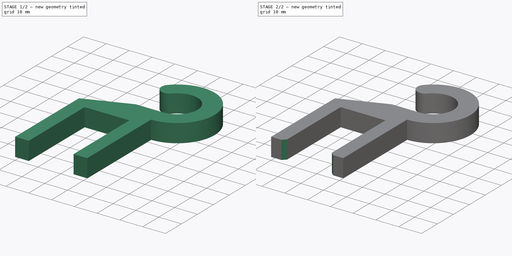
[diagram: build sequence overview — one tinted view per stage of 2, left to right]
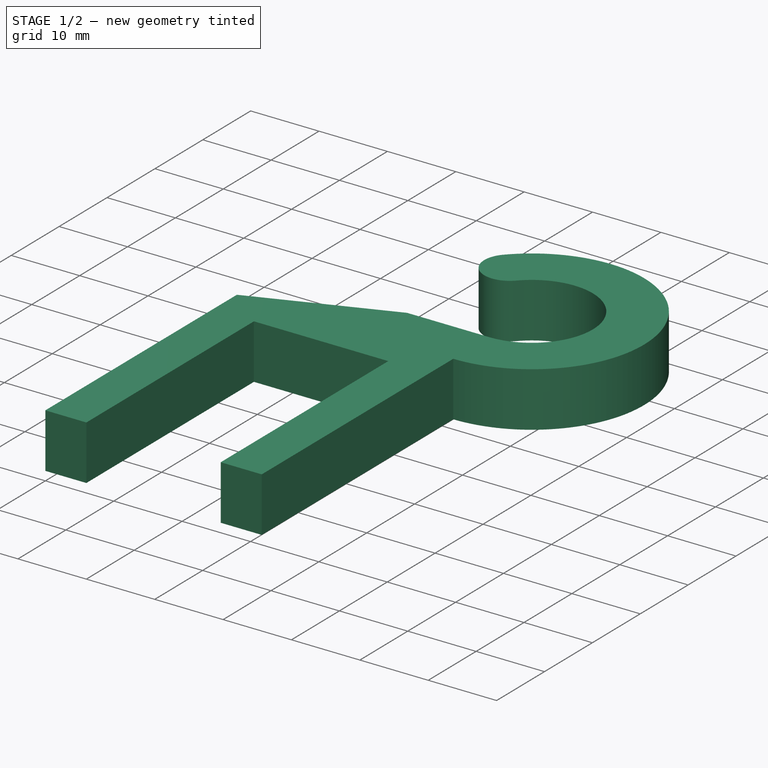
[diagram: stage 1 of 2 — iso view after this stage's code; geometry added in this stage tinted green]
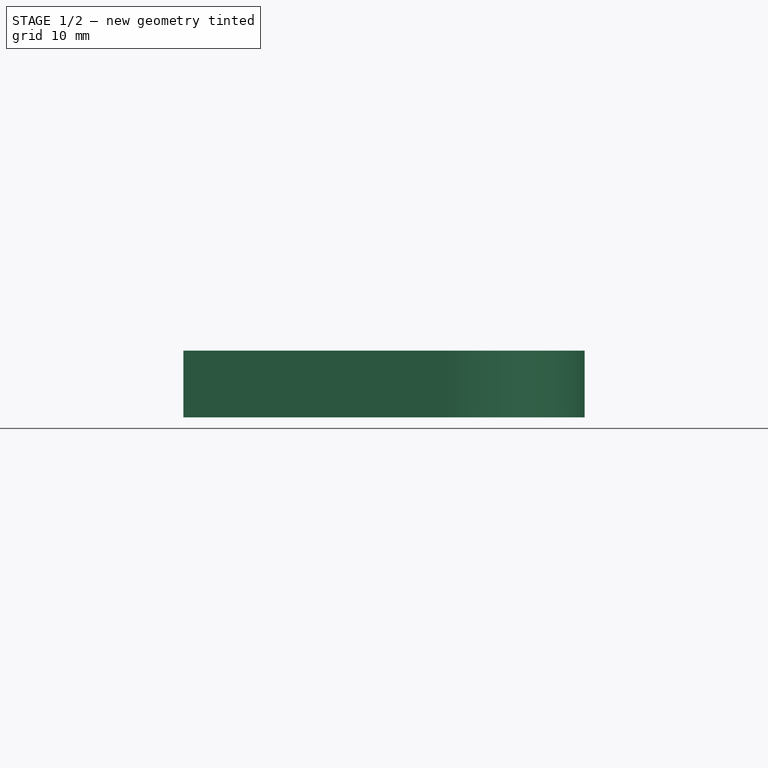
[diagram: stage 1 of 2 — front view after this stage's code; geometry added in this stage tinted green]
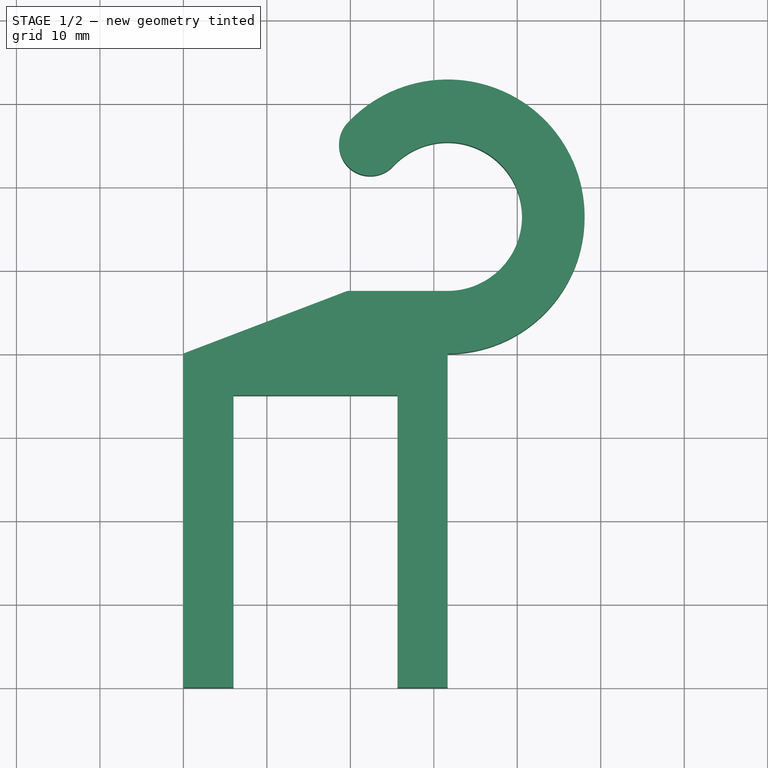
[diagram: stage 1 of 2 — top view after this stage's code; geometry added in this stage tinted green]
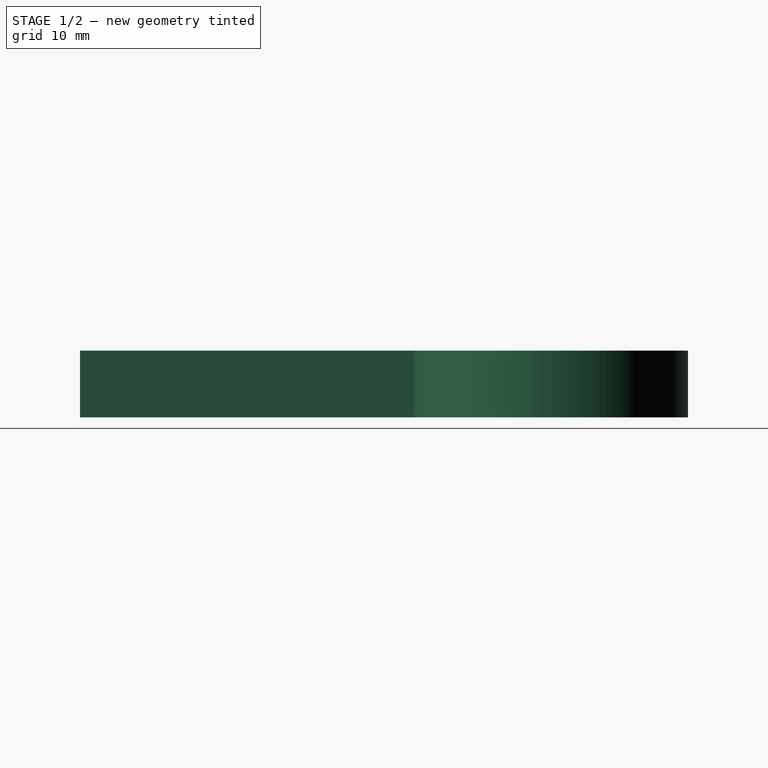
[diagram: stage 1 of 2 — right view after this stage's code; geometry added in this stage tinted green]
FCSTD DOCUMENT  (FreeCAD 0.19R22262 (Git))
Label: kleiderhaken_regal
License: All rights reserved
LicenseURL: http://en.wikipedia.org/wiki/All_rights_reserved
objects: Sketcher::SketchObject×1, PartDesign::Pad×1, PartDesign::Chamfer×1, PartDesign::Body×1
note: 6 computed .brp shape members not serialized (recipe doc carries the construction recipe); baked Part::Feature solids carry a one-line shape summary decoded from their .brp

FEATURE [Sketcher::SketchObject] Sketch
  MapMode = 5
  Support = -> [XY_Plane]
  sketch-geometry (14):
    g0: ArcOfCircle CenterX=31.65 CenterY=16.4159 CenterZ=0 NormalX=0 NormalY=0 NormalZ=1 AngleXU=0 Radius=16.4159 StartAngle=4.71239 EndAngle=8.67376
    g1: ArcOfCircle CenterX=22.3912 CenterY=25.0589 CenterZ=0 NormalX=0 NormalY=0 NormalZ=1 AngleXU=0 Radius=3.75 StartAngle=2.39058 EndAngle=5.53217
    g2: ArcOfCircle CenterX=31.65 CenterY=16.4159 CenterZ=0 NormalX=0 NormalY=0 NormalZ=1 AngleXU=0 Radius=8.91594 StartAngle=4.71239 EndAngle=8.67376
    g3: LineSegment StartX=31.65 StartY=7.5 StartZ=0 EndX=19.65 EndY=7.5 EndZ=0
    g4: LineSegment StartX=19.65 StartY=7.5 StartZ=0 EndX=0 EndY=0 EndZ=0
    g5: LineSegment StartX=0 StartY=0 StartZ=0 EndX=0 EndY=-40 EndZ=0
    g6: LineSegment StartX=0 StartY=-40 StartZ=0 EndX=6 EndY=-40 EndZ=0
    g7: LineSegment StartX=6 StartY=-40 StartZ=0 EndX=6 EndY=-5 EndZ=0
    g8: LineSegment StartX=6 StartY=-5 StartZ=0 EndX=25.65 EndY=-5 EndZ=0
    g9: LineSegment StartX=25.65 StartY=-5 StartZ=0 EndX=25.65 EndY=-40 EndZ=0
    g10: LineSegment StartX=25.65 StartY=-40 StartZ=0 EndX=31.65 EndY=-40 EndZ=0
    g11: LineSegment StartX=31.65 StartY=-40 StartZ=0 EndX=31.65 EndY=0 EndZ=0
    g12: LineSegment [constr] StartX=31.65 StartY=7.5 StartZ=0 EndX=31.65 EndY=0 EndZ=0
    g13: LineSegment [constr] StartX=25.1325 StartY=22.5 StartZ=0 EndX=19.65 EndY=27.6179 EndZ=0
  constraints (39):
    c: Tangent(g0,g1) = -1.5708
    c: Tangent(g1,g2) = 1.5708
    c: Coincident(g2,g3)
    c: Horizontal(g3)
    c: Coincident(g3,g4)
    c: Coincident(g0,g2)
    c: Coincident(g4,g-1)
    c: DistanceY(g4,g3) = 7.5
    c: DistanceY(g2,g1) = 15
    c: DistanceX(g0,g0) = 12
    c: Vertical(g3,g0)
    c: Coincident(g4,g5)
    c: PointOnObject(g5,g-2)
    c: Coincident(g5,g6)
    c: Horizontal(g6)
    c: Coincident(g6,g7)
    c: Vertical(g7)
    c: Coincident(g7,g8)
    c: Horizontal(g8)
    c: Coincident(g8,g9)
    c: Vertical(g9)
    c: Coincident(g9,g10)
    c: Horizontal(g10)
    c: Coincident(g10,g11)
    c: Vertical(g11)
    c: DistanceX(g8,g8) = 19.65
    c: DistanceX(g10,g10) = 6
    c: Equal(g10,g6)
    c: DistanceY(g7,g4) = 5
    c: Equal(g7,g9)
    c: DistanceY(g7,g7) = 35
    c: Horizontal(g11,g4)
    c: Coincident(g0,g11)
    c: Vertical(g0,g2)
    c: Coincident(g12,g2)
    c: Coincident(g12,g0)
    c: Coincident(g13,g1)
    c: Coincident(g13,g0)
    c: Equal(g13,g12)
FEATURE [PartDesign::Pad] Pad
  AllowMultiFace = false
  Length = 8
  Length2 = 100
  Profile = -> Sketch
  Refine = true
  Type = 0
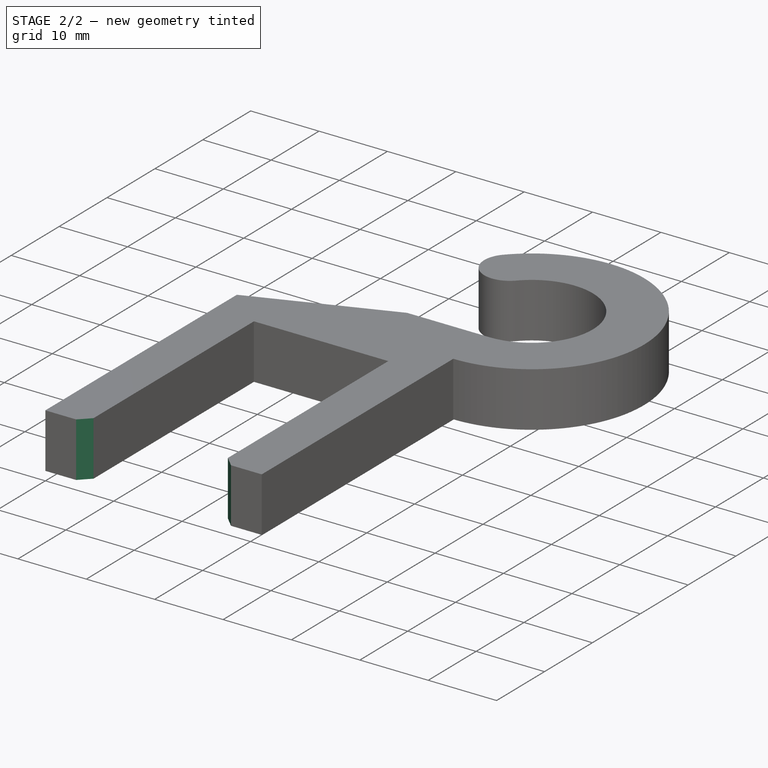
[diagram: stage 2 of 2 — iso view after this stage's code; geometry added in this stage tinted green]
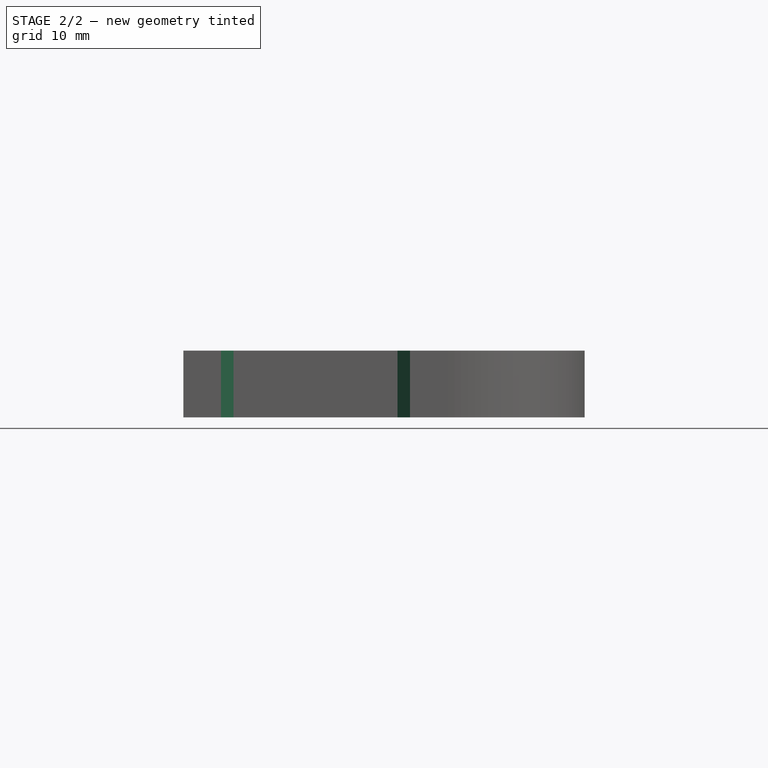
[diagram: stage 2 of 2 — front view after this stage's code; geometry added in this stage tinted green]
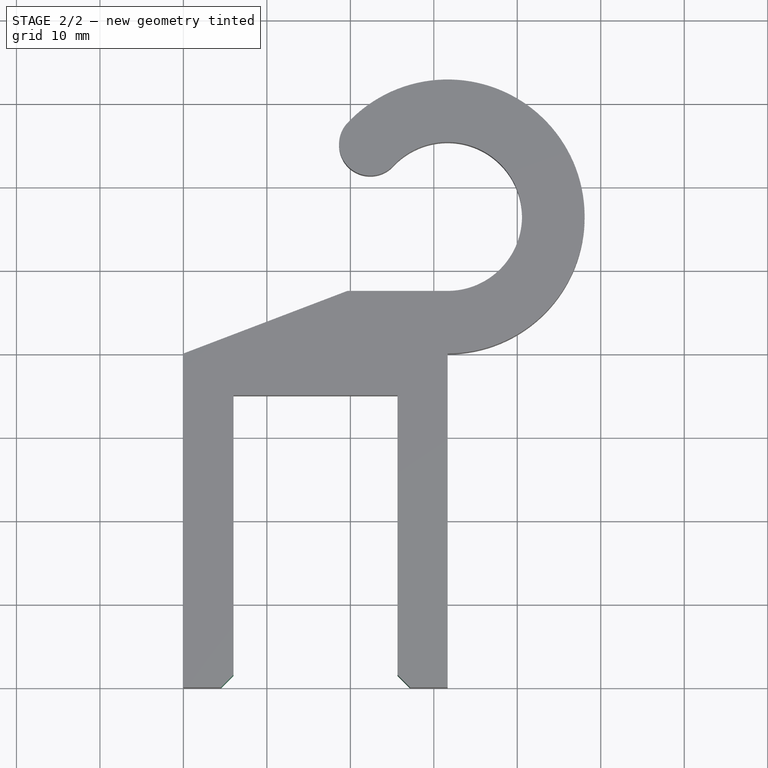
[diagram: stage 2 of 2 — top view after this stage's code; geometry added in this stage tinted green]
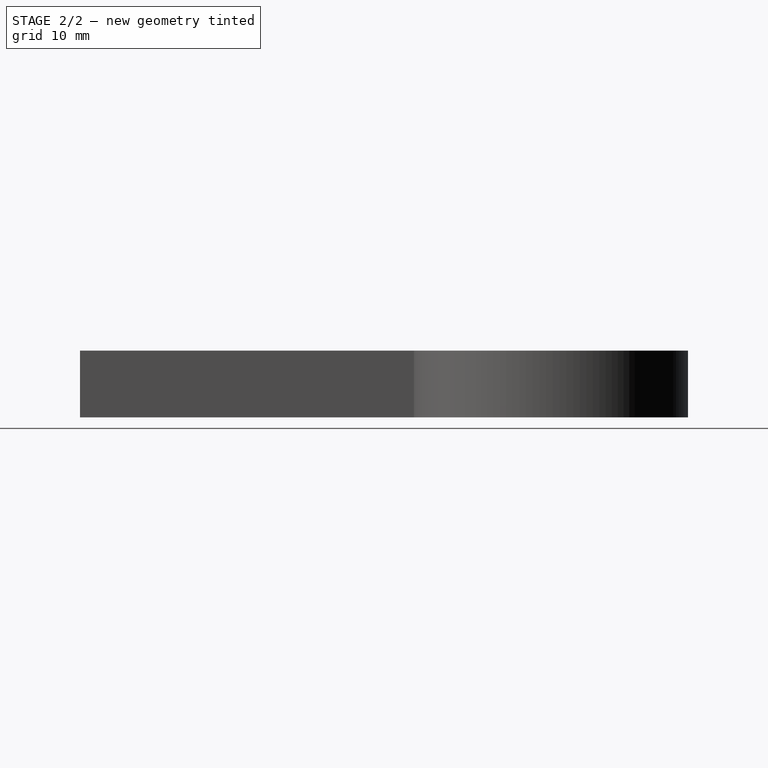
[diagram: stage 2 of 2 — right view after this stage's code; geometry added in this stage tinted green]
FEATURE [PartDesign::Chamfer] Chamfer
  Angle = 45
  Base = -> Pad [Edge20,Edge29]
  BaseFeature = -> Pad
  ChamferType = 0
  FlipDirection = false
  Refine = true
  Size = 1.5
  Size2 = 1
  SupportTransform = false
FEATURE [PartDesign::Body] Body
  Group = -> [Sketch,Pad,Chamfer]
  Origin = -> Origin
  Tip = -> Chamfer
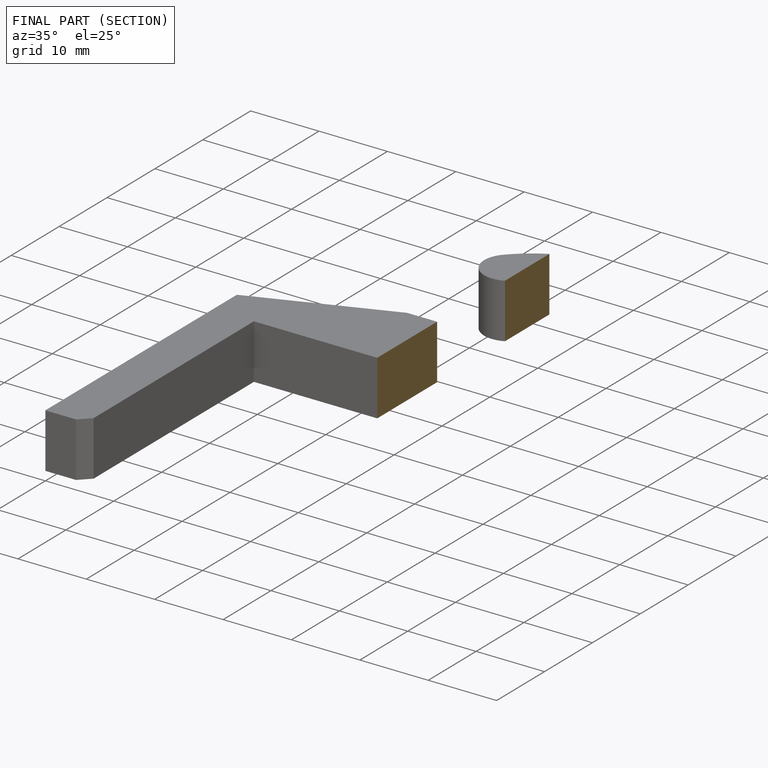
[diagram: finished part — half-section view (interior)]
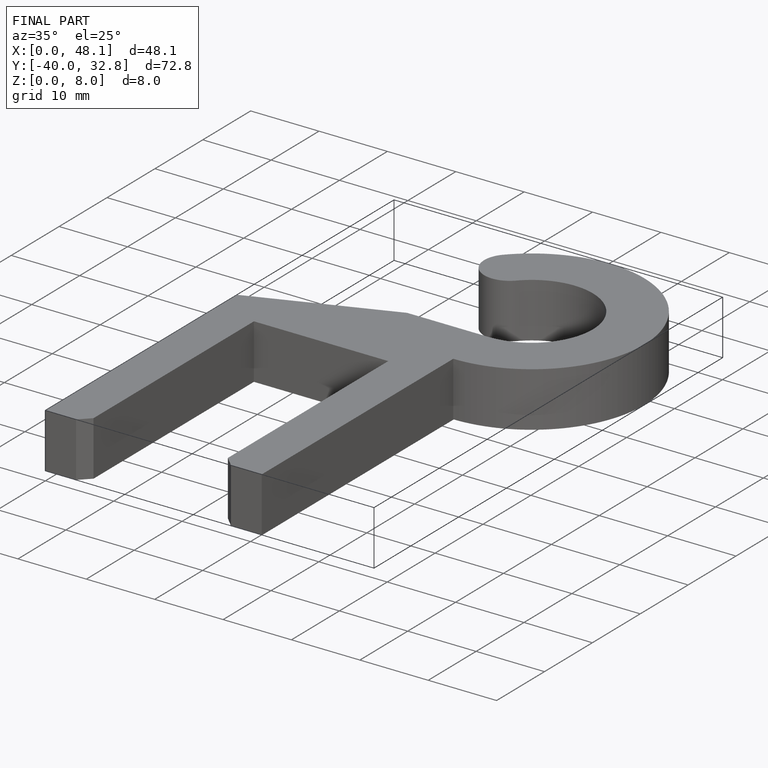
[diagram: finished part — iso view with bounding-box wireframe]
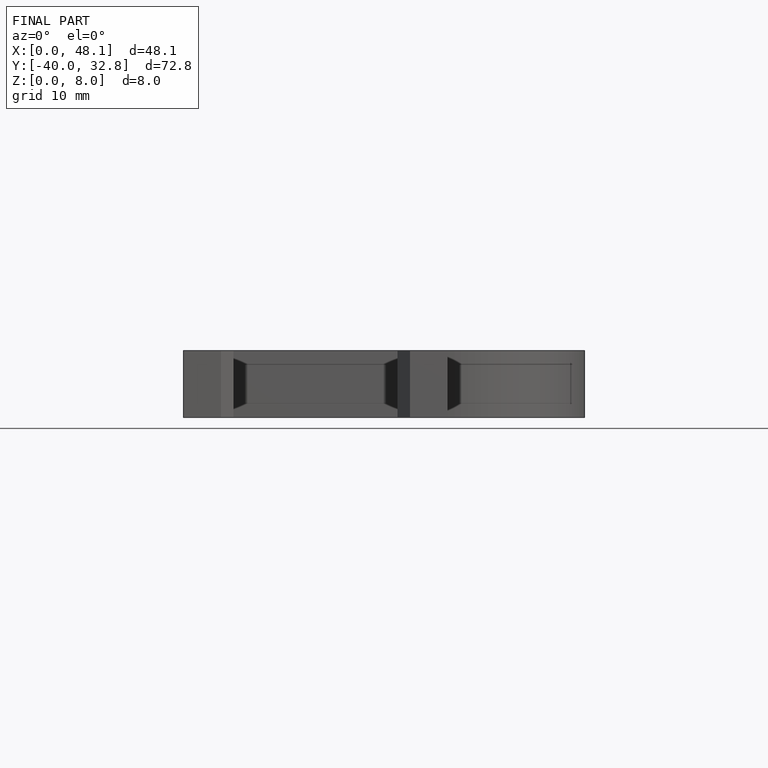
[diagram: finished part — front view with bounding-box wireframe]
